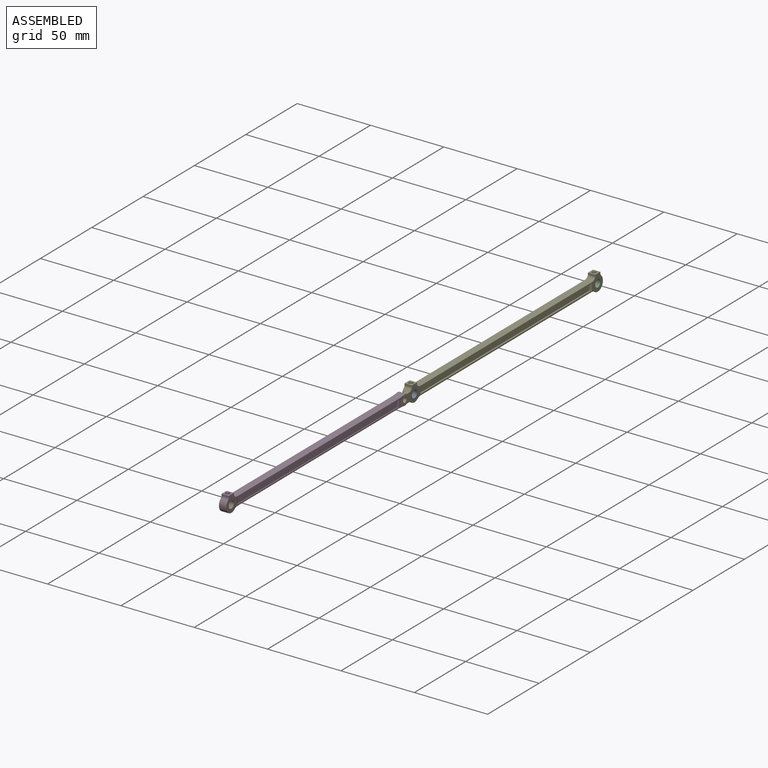
[diagram: assembled view]
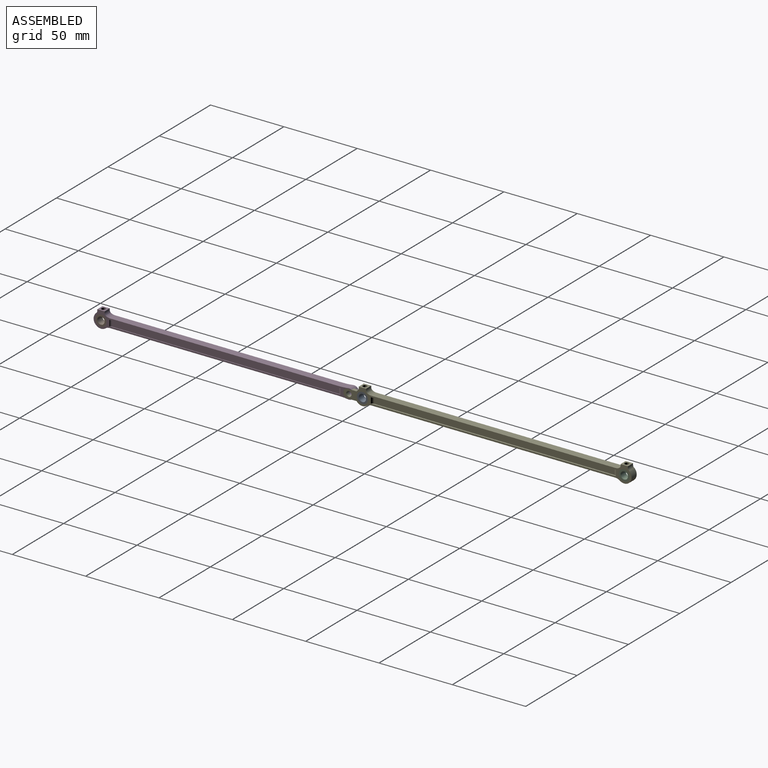
[diagram: assembled view, second angle]
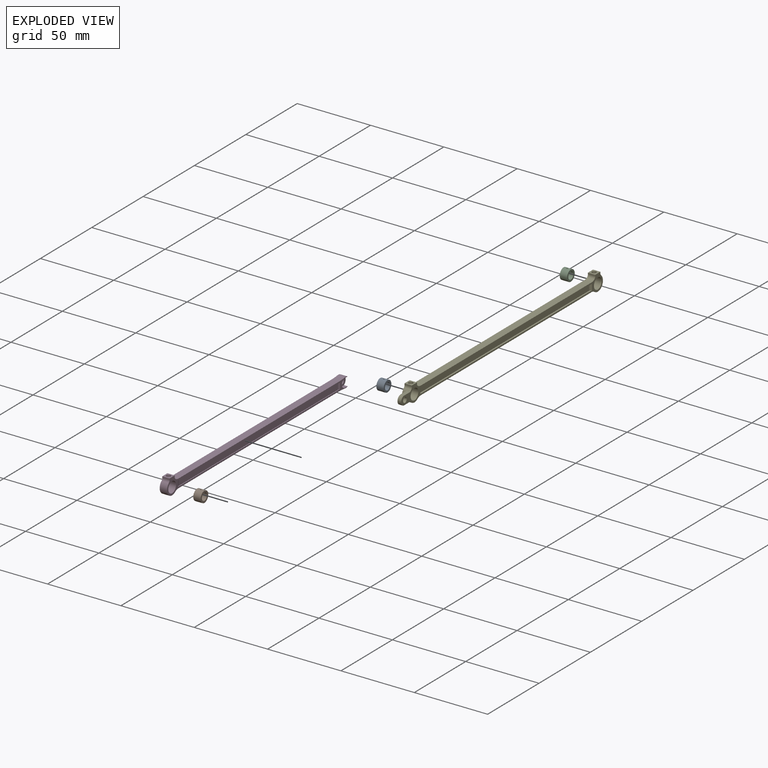
[diagram: exploded view]
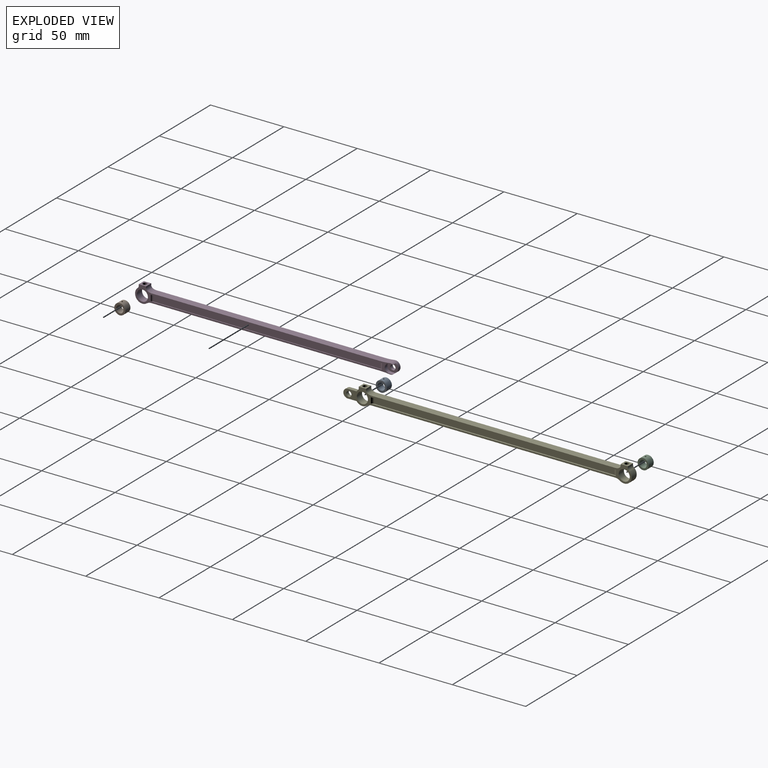
[diagram: exploded view, second angle]
ASSEMBLY  parts=5 mates=4
PART A: 5 faces, bbox 5x7.5x7.5 mm
  f0: plane 7.5x7.5mm, normal (1,0,0), area 24.5mm2, adj f1,f2
  f1: cylinder r=3.75mm len=7.5mm, axis (-1,0,0), area 117mm2, adj f0,f3,f4
  f2: cylinder r=2.5mm len=5mm, axis (-1,0,0), area 77.8mm2, adj f0,f3,f4
  f3: plane 7.5x7.5mm, normal (-1,0,0), area 24.5mm2, adj f1,f2
  f4: cylinder r=0.5mm len=1.3mm, axis (0,0,1), area 4mm2, adj f1,f2
PART B: same geometry as A
PART C: same geometry as A
PART D: 32 faces, bbox 5x177.5x11.3 mm
  f0: plane 177.5x11.33mm, normal (-1,0,0), area 410.7mm2, adj f2,f3,f4,f5,f6,f7,f8,f9
  f1: plane 175.8x11.33mm, normal (1,0,0), area 384.2mm2, adj f2,f3,f4,f5,f6,f7,f8,f9
  f2: cylinder r=3.5mm len=7mm, axis (1,0,0), area 42mm2, adj f0,f1,f10,f12,f13,f15,f16
  f3: plane 156.05x5mm, normal (0,0,1), area 780.3mm2, adj f0,f1,f15,f28
  f4: plane 5x0.93mm, normal (0,1,0), area 4.6mm2, adj f0,f1,f5,f30
  f5: plane 5x5mm, normal (0,0,1), area 17.9mm2, adj f0,f1,f4,f6,f27
  f6: plane 5x0.97mm, normal (0,-1,0), area 4.8mm2, adj f0,f1,f5,f31
  f7: cylinder r=5mm len=8.83mm, axis (1,0,0), area 77.2mm2, adj f0,f1,f29,f31
  f8: plane 156.05x5mm, normal (0,0,-1), area 780.3mm2, adj f0,f1,f16,f29
  f9: cylinder r=3.75mm len=7.5mm, axis (1,0,0), area 110.6mm2, adj f0,f1,f27
  f10: plane 2.55x2.5mm, normal (0,0,-1), area 6.4mm2, adj f1,f2,f11,f13
  f11: cylinder r=3mm len=6mm, axis (1,0,0), area 23.6mm2, adj f1,f10,f12,f13
  f12: plane 2.55x2.5mm, normal (0,0,1), area 6.4mm2, adj f1,f2,f11,f13
  f13: plane 7.25x6mm, normal (1,0,0), area 26.5mm2, adj f2,f10,f11,f12,f14
  f14: cylinder r=1.8mm len=3.6mm, axis (1,0,0), area 28.3mm2, adj f0,f13
  f15: cylinder r=45mm len=6.45mm, axis (1,0,0), area 32.3mm2, adj f0,f1,f2,f3
  f16: cylinder r=45mm len=6.45mm, axis (1,0,0), area 32.3mm2, adj f0,f1,f2,f8
  f17: plane 157.5x0.5mm, normal (0,0,-1), area 78.3mm2, adj f1,f19,f20,f21
  f18: plane 157.5x0.5mm, normal (0,0,1), area 78.3mm2, adj f1,f19,f20,f21
  f19: plane 154.85x4mm, normal (1,0,0), area 619.4mm2, adj f17,f18,f20,f21
  f20: cylinder r=2mm len=4mm, axis (0,0,-1), area 5.8mm2, adj f1,f17,f18,f19
  f21: cylinder r=2mm len=4mm, axis (0,0,-1), area 5.8mm2, adj f1,f17,f18,f19
  f22: plane 157.5x0.5mm, normal (0,0,-1), area 78.3mm2, adj f0,f24,f25,f26
  f23: plane 157.5x0.5mm, normal (0,0,1), area 78.3mm2, adj f0,f24,f25,f26
  f24: plane 154.85x4mm, normal (-1,0,0), area 619.4mm2, adj f22,f23,f25,f26
  f25: cylinder r=2mm len=4mm, axis (0,0,1), area 5.8mm2, adj f0,f22,f23,f24
  f26: cylinder r=2mm len=4mm, axis (0,0,1), area 5.8mm2, adj f0,f22,f23,f24
  f27: cylinder r=1.5mm len=3mm, axis (0,0,1), area 25.8mm2, adj f5,f9
  f28: cylinder r=5mm len=5mm, axis (1,0,0), area 13.1mm2, adj f0,f1,f3,f30
  f29: cylinder r=5mm len=5mm, axis (1,0,0), area 16.1mm2, adj f0,f1,f7,f8
  f30: cylinder r=2mm len=5mm, axis (1,0,0), area 10.5mm2, adj f0,f1,f4,f28
  f31: cylinder r=2mm len=5mm, axis (1,0,0), area 8.7mm2, adj f0,f1,f6,f7
PART E: 39 faces, bbox 5x196.5x11.3 mm
  f0: plane 196.5x11.33mm, normal (1,0,0), area 469mm2, adj f2,f3,f4,f5,f6,f7,f8,f9
  f1: plane 188.5x11.33mm, normal (-1,0,0), area 433.2mm2, adj f6,f7,f8,f9,f10,f11,f12,f13
  f2: plane 6x2.5mm, normal (0,0,1), area 15mm2, adj f0,f4,f6,f20
  f3: plane 6x2.5mm, normal (0,0,-1), area 15mm2, adj f0,f4,f6,f20
  f4: cylinder r=2.99mm len=5.99mm, axis (1,0,0), area 23.5mm2, adj f0,f2,f3,f20
  f5: cylinder r=1.8mm len=3.6mm, axis (1,0,0), area 28.3mm2, adj f0,f20
  f6: cylinder r=5mm len=8.83mm, axis (1,0,0), area 61.2mm2, adj f0,f1,f2,f3,f20,f31,f38
  f7: plane 166.48x5mm, normal (0,0,-1), area 832.4mm2, adj f0,f1,f31,f32
  f8: cylinder r=5mm len=8.83mm, axis (1,0,0), area 77.2mm2, adj f0,f1,f32,f35
  f9: plane 5x0.97mm, normal (0,1,0), area 4.8mm2, adj f0,f1,f10,f35
  f10: plane 5x5mm, normal (0,0,1), area 17.9mm2, adj f0,f1,f9,f11,f19
  f11: plane 5x0.93mm, normal (0,-1,0), area 4.6mm2, adj f0,f1,f10,f36
  f12: plane 166.48x5mm, normal (0,0,1), area 832.4mm2, adj f0,f1,f33,f34
  f13: plane 5x0.93mm, normal (0,1,0), area 4.6mm2, adj f0,f1,f14,f37
  f14: plane 5x5mm, normal (0,0,1), area 17.9mm2, adj f0,f1,f13,f17,f18
  f15: cylinder r=3.75mm len=7.5mm, axis (1,0,0), area 110.6mm2, adj f0,f1,f18
  f16: cylinder r=3.75mm len=7.5mm, axis (1,0,0), area 110.6mm2, adj f0,f1,f19
  f17: plane 5x0.97mm, normal (0,-1,0), area 4.8mm2, adj f0,f1,f14,f38
  f18: cylinder r=1.5mm len=3mm, axis (0,0,1), area 25.8mm2, adj f14,f15
  f19: cylinder r=1.5mm len=3mm, axis (0,0,1), area 25.8mm2, adj f10,f16
  f20: plane 8.99x5.99mm, normal (-1,0,0), area 35.7mm2, adj f2,f3,f4,f5,f6
  f21: plane 167x1mm, normal (0,0,-1), area 166mm2, adj f1,f23,f24,f25
  f22: plane 167x1mm, normal (0,0,1), area 166mm2, adj f1,f23,f24,f25
  f23: plane 163.54x3.99mm, normal (-1,0,0), area 651.7mm2, adj f21,f22,f24,f25
  f24: cylinder r=2mm len=3.99mm, axis (0,0,1), area 8.3mm2, adj f1,f21,f22,f23
  f25: cylinder r=2mm len=3.99mm, axis (0,0,1), area 8.3mm2, adj f1,f21,f22,f23
  f26: plane 167x1mm, normal (0,0,-1), area 166mm2, adj f0,f28,f29,f30
  f27: plane 167x1mm, normal (0,0,1), area 166mm2, adj f0,f28,f29,f30
  f28: plane 163.54x3.99mm, normal (1,0,0), area 651.7mm2, adj f26,f27,f29,f30
  f29: cylinder r=2mm len=3.99mm, axis (0,0,-1), area 8.3mm2, adj f0,f26,f27,f28
  f30: cylinder r=2mm len=3.99mm, axis (0,0,-1), area 8.3mm2, adj f0,f26,f27,f28
  f31: cylinder r=5mm len=5mm, axis (1,0,0), area 16.1mm2, adj f0,f1,f6,f7
  f32: cylinder r=5mm len=5mm, axis (1,0,0), area 16.1mm2, adj f0,f1,f7,f8
  f33: cylinder r=5mm len=5mm, axis (1,0,0), area 13.2mm2, adj f0,f1,f12,f36
  f34: cylinder r=5mm len=5mm, axis (1,0,0), area 13.2mm2, adj f0,f1,f12,f37
  f35: cylinder r=2mm len=5mm, axis (1,0,0), area 8.7mm2, adj f0,f1,f8,f9
  f36: cylinder r=2mm len=5mm, axis (1,0,0), area 10.4mm2, adj f0,f1,f11,f33
  f37: cylinder r=2mm len=5mm, axis (1,0,0), area 10.4mm2, adj f0,f1,f13,f34
  f38: cylinder r=2mm len=5mm, axis (1,0,0), area 8.7mm2, adj f0,f1,f6,f17
PLACE A t=(-18.08,119.98,13.24)mm
PLACE B t=(-18.08,-58.27,13.24)mm
PLACE C t=(-18.08,298.48,13.24)mm
PLACE D t=(-13.08,-19.9,27.8)mm
PLACE E t=(-13.08,174.14,20.85)mm
MATE fastened A.f1 <-> E.f6  axis (-1,0,0) through (-18.08,104.48,27.8)mm
MATE fastened E.f5 <-> D.f14  axis (-1,0,0) through (-15.58,95.23,27.8)mm
MATE fastened C.f1 <-> E.f8  axis (-1,0,0) through (-18.08,282.98,27.8)mm
MATE fastened B.f1 <-> D.f9  axis (-1,0,0) through (-18.08,-73.77,27.8)mm
